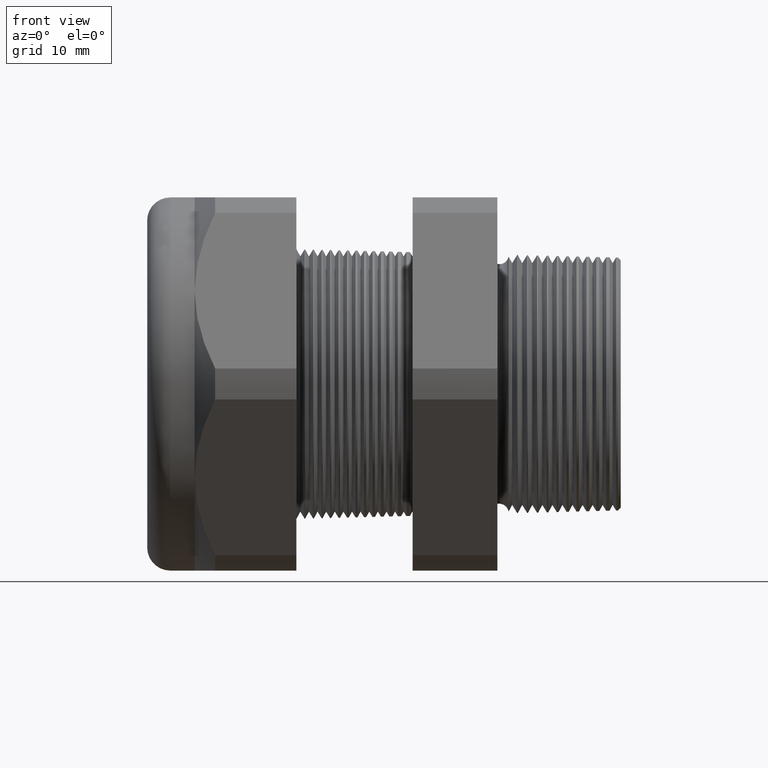
[diagram: clean part render]
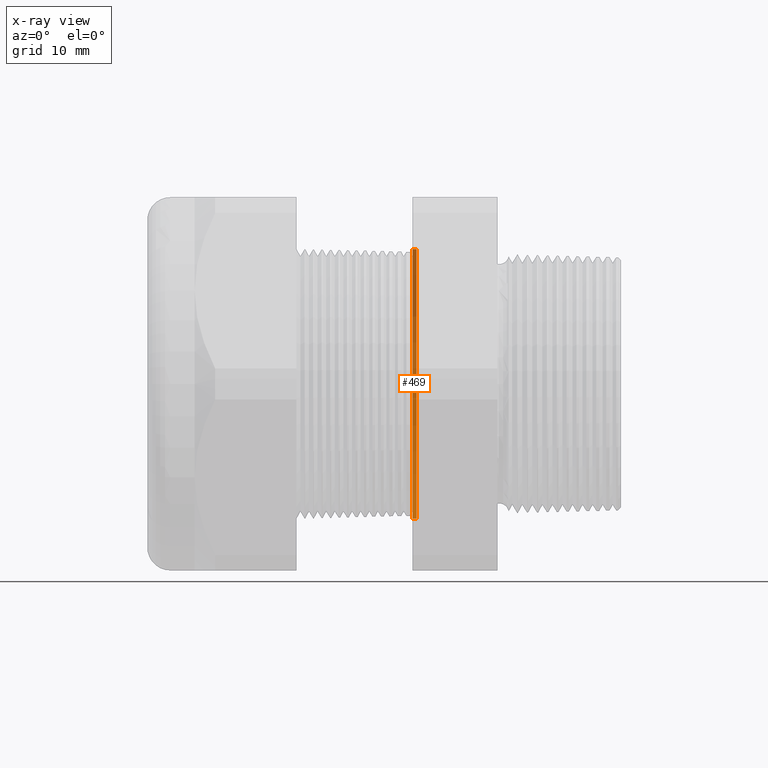
[diagram: x-ray — body ghosted, one internal face saturated and labeled with its STEP entity id]
A machine part, front view, then the same camera in x-ray: the body is ghosted and one INTERNAL B-rep face — a face not visible from any outside direction — is saturated and labeled: STEP entity #469.
In plain terms, the highlighted conical surface has half-angle 1.5 deg.
Its self-contained STEP definition (entity closure, byte-faithful):
#469 = ADVANCED_FACE ( 'NONE', ( #1491 ), #1490, .F. ) ;
#470 = EDGE_LOOP ( 'NONE', ( #471, #526, #527, #528 ) ) ;
#471 = ORIENTED_EDGE ( 'NONE', *, *, #4800, .F. ) ;
#526 = ORIENTED_EDGE ( 'NONE', *, *, #736, .T. ) ;
#527 = ORIENTED_EDGE ( 'NONE', *, *, #4824, .T. ) ;
#528 = ORIENTED_EDGE ( 'NONE', *, *, #5510, .T. ) ;
#736 = EDGE_CURVE ( 'NONE', #4789, #4785, #1869, .T. ) ;
#1486 = DIRECTION ( 'NONE',  ( 0.0000000000000000000, 0.0000000000000000000, 1.000000000000000000 ) ) ;
#1487 = DIRECTION ( 'NONE',  ( -1.000000000000000000, 0.0000000000000000000, 0.0000000000000000000 ) ) ;
#1488 = AXIS2_PLACEMENT_3D ( 'NONE', #1495, #1487, #1486 ) ;
#1490 = CONICAL_SURFACE ( 'NONE', #1488, 0.4692443365923945100, 0.02617993877990797800 ) ;
#1491 = FACE_OUTER_BOUND ( 'NONE', #470, .T. ) ;
#1495 = CARTESIAN_POINT ( 'NONE',  ( -0.5914573393463203900, 0.0000000000000000000, 0.0000000000000000000 ) ) ;
#1861 = DIRECTION ( 'NONE',  ( 0.0000000000000000000, 0.0000000000000000000, -1.000000000000000000 ) ) ;
#1862 = DIRECTION ( 'NONE',  ( 1.000000000000000000, 0.0000000000000000000, 0.0000000000000000000 ) ) ;
#1863 = CARTESIAN_POINT ( 'NONE',  ( -0.5914573393463203900, 0.0000000000000000000, 0.0000000000000000000 ) ) ;
#1864 = AXIS2_PLACEMENT_3D ( 'NONE', #1863, #1862, #1861 ) ;
#1869 = CIRCLE ( 'NONE', #1864, 0.4692443365923945100 ) ;
#2164 = CARTESIAN_POINT ( 'NONE',  ( -0.6052755905511809600, 5.751017054842014700E-017, -0.4696061802346682100 ) ) ;
#2476 = CARTESIAN_POINT ( 'NONE',  ( -0.5914573393463203900, 0.0000000000000000000, -0.4692443365923945100 ) ) ;
#2478 = CARTESIAN_POINT ( 'NONE',  ( -0.5914573393463203900, 5.746585748258992000E-017, 0.4692443365923945100 ) ) ;
#2495 = CARTESIAN_POINT ( 'NONE',  ( -0.6052755905511809600, 0.0000000000000000000, 0.4696061802346682100 ) ) ;
#2511 = DIRECTION ( 'NONE',  ( -0.9996573249755573700, 3.205751595667405400E-018, -0.02617694830786618600 ) ) ;
#2512 = VECTOR ( 'NONE', #2511, 39.37007874015748100 ) ;
#2513 = CARTESIAN_POINT ( 'NONE',  ( -0.5914573393463203900, 5.746585748258992000E-017, -0.4692443365923945100 ) ) ;
#2514 = LINE ( 'NONE', #2513, #2512 ) ;
#2580 = DIRECTION ( 'NONE',  ( -0.9996573249755573700, 0.0000000000000000000, 0.02617694830786618600 ) ) ;
#2581 = VECTOR ( 'NONE', #2580, 39.37007874015748100 ) ;
#2582 = CARTESIAN_POINT ( 'NONE',  ( -0.5914573393463203900, 0.0000000000000000000, 0.4692443365923945100 ) ) ;
#2583 = LINE ( 'NONE', #2582, #2581 ) ;
#3864 = DIRECTION ( 'NONE',  ( 0.0000000000000000000, 0.0000000000000000000, 1.000000000000000000 ) ) ;
#3865 = DIRECTION ( 'NONE',  ( -1.000000000000000000, 0.0000000000000000000, 0.0000000000000000000 ) ) ;
#3866 = CARTESIAN_POINT ( 'NONE',  ( -0.6052755905511809600, 0.0000000000000000000, 0.0000000000000000000 ) ) ;
#3867 = AXIS2_PLACEMENT_3D ( 'NONE', #3866, #3865, #3864 ) ;
#3868 = CIRCLE ( 'NONE', #3867, 0.4696061802346682700 ) ;
#4618 = VERTEX_POINT ( 'NONE', #2164 ) ;
#4785 = VERTEX_POINT ( 'NONE', #2478 ) ;
#4789 = VERTEX_POINT ( 'NONE', #2476 ) ;
#4800 = EDGE_CURVE ( 'NONE', #4789, #4618, #2514, .T. ) ;
#4809 = VERTEX_POINT ( 'NONE', #2495 ) ;
#4824 = EDGE_CURVE ( 'NONE', #4785, #4809, #2583, .T. ) ;
#5510 = EDGE_CURVE ( 'NONE', #4809, #4618, #3868, .T. ) ;